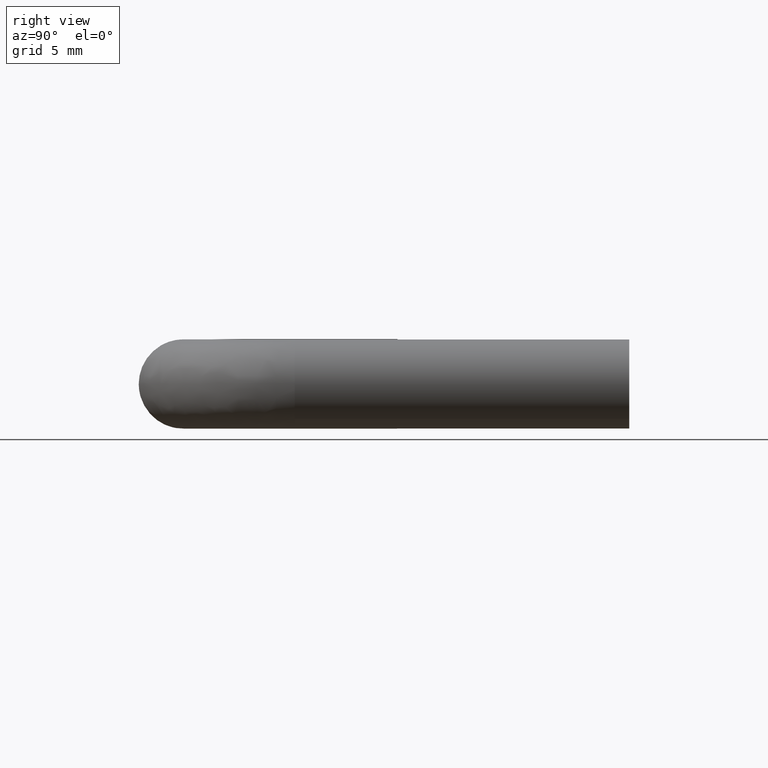
[diagram: clean part render]
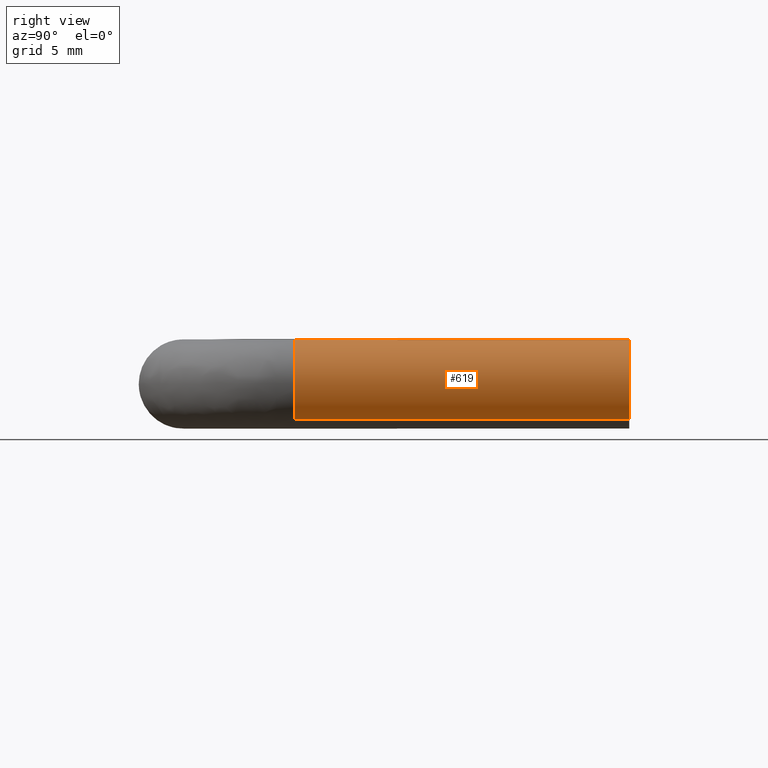
[diagram: same view with one face highlighted and labeled with its STEP entity id]
A machine part, right view. The second image highlights one B-rep face of the part: STEP entity #619.
In plain terms, the highlighted face is a freeform B-spline surface patch.
Its self-contained STEP definition (entity closure, byte-faithful):
#428=CARTESIAN_POINT('',(21.245028317143941,-15.0,-1.565217074245048));
#429=VERTEX_POINT('',#428);
#460=CARTESIAN_POINT('',(18.754971682856059,-15.0,1.565217074245048));
#461=VERTEX_POINT('',#460);
#475=CARTESIAN_POINT('',(18.754970951069641,7.008283E-016,1.565216492156750));
#476=VERTEX_POINT('',#475);
#477=CARTESIAN_POINT('',(18.754971682856059,-15.0,1.565217074245048));
#478=CARTESIAN_POINT('',(18.754970951069641,7.008283E-016,1.565216492156750));
#479=QUASI_UNIFORM_CURVE('',1,(#477,#478),.UNSPECIFIED.,.F.,.U.);
#480=EDGE_CURVE('',#461,#476,#479,.T.);
#497=CARTESIAN_POINT('',(21.245029048930359,7.008283E-016,-1.565216492156754));
#498=VERTEX_POINT('',#497);
#514=CARTESIAN_POINT('',(21.245028317143941,-15.0,-1.565217074245048));
#515=CARTESIAN_POINT('',(21.245029048930359,7.008283E-016,-1.565216492156754));
#516=QUASI_UNIFORM_CURVE('',1,(#514,#515),.UNSPECIFIED.,.F.,.U.);
#517=EDGE_CURVE('',#429,#498,#516,.T.);
#522=CARTESIAN_POINT('',(18.754970726724761,-15.375000000082229,1.565216313704828));
#523=CARTESIAN_POINT('',(20.320187040429595,-15.375000000082226,2.810245586980066));
#524=CARTESIAN_POINT('',(21.565216313704830,-15.375000000082229,1.245029273275238));
#525=CARTESIAN_POINT('',(22.810245586980074,-15.375000000082226,-0.320187040429590));
#526=CARTESIAN_POINT('',(21.245029273275239,-15.375000000082229,-1.565216313704828));
#527=CARTESIAN_POINT('',(18.754970726724761,0.384375000002057,1.565216313704828));
#528=CARTESIAN_POINT('',(20.320187040429580,0.384375000002058,2.810245586980066));
#529=CARTESIAN_POINT('',(21.565216313704820,0.384375000002058,1.245029273275238));
#530=CARTESIAN_POINT('',(22.810245586980059,0.384375000002058,-0.320187040429590));
#531=CARTESIAN_POINT('',(21.245029273275239,0.384375000002057,-1.565216313704828));
#539=(BOUNDED_SURFACE()B_SPLINE_SURFACE(2,1,((#522,#527),(#523,#528),(#524,#529),(#525,#530),(#526,#531)),.UNSPECIFIED.,.F.,.F.,.U.)B_SPLINE_SURFACE_WITH_KNOTS((3,2,3),(2,2),(0.0,3.313708498984768,6.627416997969536),(0.0,15.759375000084290),.UNSPECIFIED.)GEOMETRIC_REPRESENTATION_ITEM()RATIONAL_B_SPLINE_SURFACE(((1.0,1.0),(0.707106781186548,0.707106781186548),(1.0,1.0),(0.707106781186548,0.707106781186548),(1.0,1.0)))REPRESENTATION_ITEM('')SURFACE());
#540=CARTESIAN_POINT('',(22.0,-15.0,0.0));
#541=VERTEX_POINT('',#540);
#542=CARTESIAN_POINT('',(21.245028317143937,-15.000000000000002,-1.565217074245048));
#543=CARTESIAN_POINT('',(21.999999999999996,-14.999999999999995,-0.964686234616793));
#544=CARTESIAN_POINT('',(22.0,-15.0,0.0));
#552=(BOUNDED_CURVE()B_SPLINE_CURVE(2,(#542,#543,#544),.UNSPECIFIED.,.F.,.U.)B_SPLINE_CURVE_WITH_KNOTS((3,3),(0.357863784922316,0.500000000000000),.UNSPECIFIED.)CURVE()GEOMETRIC_REPRESENTATION_ITEM()RATIONAL_B_SPLINE_CURVE((0.856305648347035,0.833477065823744,1.0))REPRESENTATION_ITEM(''));
#553=EDGE_CURVE('',#429,#541,#552,.T.);
#554=ORIENTED_EDGE('',*,*,#553,.F.);
#555=ORIENTED_EDGE('',*,*,#517,.T.);
#556=CARTESIAN_POINT('',(22.0,1.734723E-015,0.0));
#557=VERTEX_POINT('',#556);
#558=CARTESIAN_POINT('',(21.245029048930355,7.008283E-016,-1.565216492156753));
#559=CARTESIAN_POINT('',(22.000000000000007,1.734723E-015,-0.964685834991696));
#560=CARTESIAN_POINT('',(22.0,1.734723E-015,0.0));
#568=(BOUNDED_CURVE()B_SPLINE_CURVE(2,(#558,#559,#560),.UNSPECIFIED.,.F.,.U.)B_SPLINE_CURVE_WITH_KNOTS((3,3),(0.357863833997858,0.500000000000000),.UNSPECIFIED.)CURVE()GEOMETRIC_REPRESENTATION_ITEM()RATIONAL_B_SPLINE_CURVE((0.856305632582953,0.833477123319317,1.0))REPRESENTATION_ITEM(''));
#569=EDGE_CURVE('',#498,#557,#568,.T.);
#570=ORIENTED_EDGE('',*,*,#569,.T.);
#571=CARTESIAN_POINT('',(22.0,1.734723E-015,0.0));
#572=CARTESIAN_POINT('',(22.000000000000007,1.734723E-015,2.000000000000000));
#573=CARTESIAN_POINT('',(20.0,1.734723E-015,2.0));
#574=CARTESIAN_POINT('',(19.301569054778987,1.734723E-015,2.0));
#575=CARTESIAN_POINT('',(18.754970951069637,7.008283E-016,1.565216492156751));
#583=(BOUNDED_CURVE()B_SPLINE_CURVE(2,(#571,#572,#573,#574,#575),.UNSPECIFIED.,.F.,.U.)B_SPLINE_CURVE_WITH_KNOTS((3,2,3),(0.500000000000000,0.750000000000000,0.857863833997858),.UNSPECIFIED.)CURVE()GEOMETRIC_REPRESENTATION_ITEM()RATIONAL_B_SPLINE_CURVE((1.0,0.707106781186548,1.0,0.873629657867230,0.856305632582953))REPRESENTATION_ITEM(''));
#584=EDGE_CURVE('',#557,#476,#583,.T.);
#585=ORIENTED_EDGE('',*,*,#584,.T.);
#586=ORIENTED_EDGE('',*,*,#480,.F.);
#587=CARTESIAN_POINT('',(20.139466503375111,-15.000000000051781,1.995131347665190));
#588=VERTEX_POINT('',#587);
#589=CARTESIAN_POINT('',(20.139466503375111,-15.000000000051777,1.995131347665191));
#590=CARTESIAN_POINT('',(20.069818231974466,-15.0,2.000000000000000));
#591=CARTESIAN_POINT('',(20.0,-15.0,2.0));
#592=CARTESIAN_POINT('',(19.301569418514180,-15.000000000000007,2.000000000000000));
#593=CARTESIAN_POINT('',(18.754971682856056,-15.000000000000002,1.565217074245048));
#601=(BOUNDED_CURVE()B_SPLINE_CURVE(2,(#589,#590,#591,#592,#593),.UNSPECIFIED.,.F.,.U.)B_SPLINE_CURVE_WITH_KNOTS((3,2,3),(0.737833686496478,0.750000000000000,0.857863784922316),.UNSPECIFIED.)CURVE()GEOMETRIC_REPRESENTATION_ITEM()RATIONAL_B_SPLINE_CURVE((0.972879876305304,0.985746277107439,1.0,0.873629715362804,0.856305648347035))REPRESENTATION_ITEM(''));
#602=EDGE_CURVE('',#588,#461,#601,.T.);
#603=ORIENTED_EDGE('',*,*,#602,.F.);
#604=CARTESIAN_POINT('',(22.0,-15.0,0.0));
#605=CARTESIAN_POINT('',(22.000000000000004,-15.0,1.865073694113004));
#606=CARTESIAN_POINT('',(20.139466503375104,-15.000000000051783,1.995131347665191));
#614=(BOUNDED_CURVE()B_SPLINE_CURVE(2,(#604,#605,#606),.UNSPECIFIED.,.F.,.U.)B_SPLINE_CURVE_WITH_KNOTS((3,3),(0.500000000000000,0.737833686496478),.UNSPECIFIED.)CURVE()GEOMETRIC_REPRESENTATION_ITEM()RATIONAL_B_SPLINE_CURVE((1.0,0.721360504079108,0.972879876305305))REPRESENTATION_ITEM(''));
#615=EDGE_CURVE('',#541,#588,#614,.T.);
#616=ORIENTED_EDGE('',*,*,#615,.F.);
#617=EDGE_LOOP('',(#554,#555,#570,#585,#586,#603,#616));
#618=FACE_OUTER_BOUND('',#617,.T.);
#619=ADVANCED_FACE('',(#618),#539,.T.);